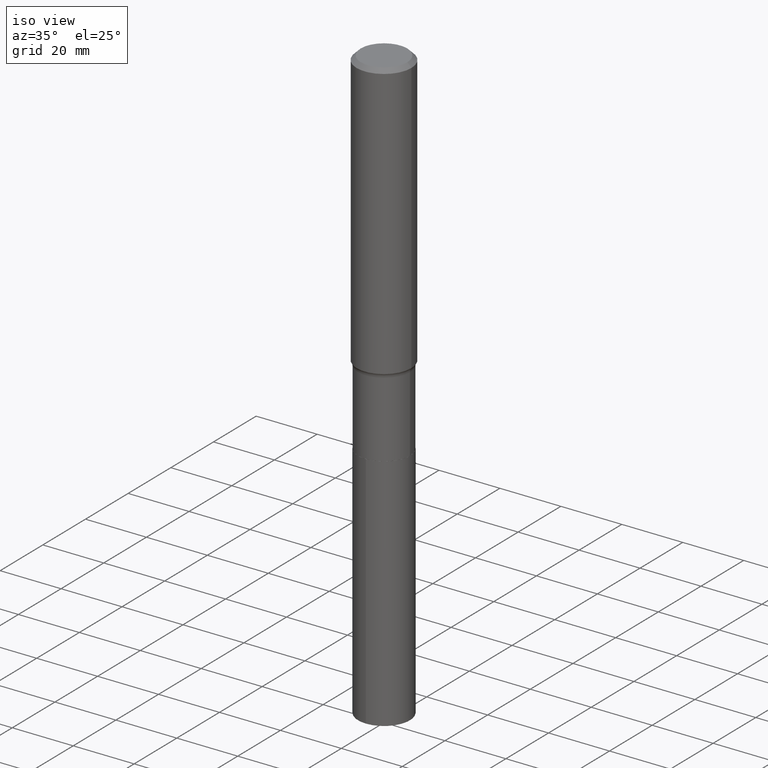
[diagram: clean part render]
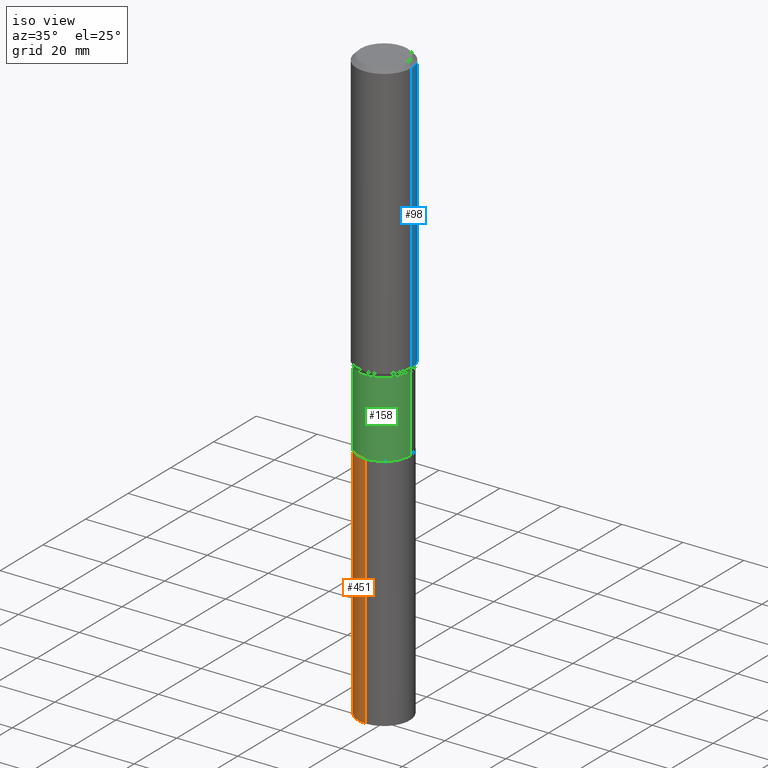
[diagram: same view with three faces highlighted in distinct colors, each labeled with its STEP entity id]
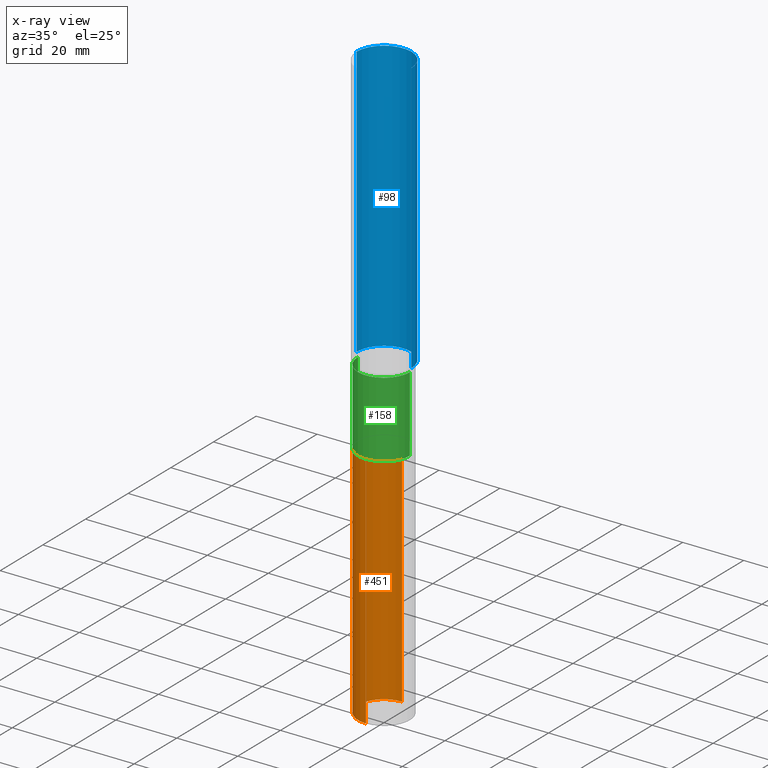
[diagram: x-ray of the same camera — body ghosted, the three highlighted faces saturated]
A machine part, iso view with three faces highlighted in distinct colors.
The next image is the same camera in x-ray (body ghosted, the three faces saturated) — at least one of them is partly hidden behind the body in this view.
Their STEP definitions:

[orange] entity #451 — the highlighted cylindrical surface (edge-blend (fillet) strip) has radius 8.5001 mm, axis along (-0, 0, 1).
#33 = VERTEX_POINT ( 'NONE', #99 ) ;
#34 = DIRECTION ( 'NONE',  ( -6.982962677686266711E-15, -1.000000000000000000, 3.265319580055895186E-15 ) ) ;
#68 = ORIENTED_EDGE ( 'NONE', *, *, #251, .T. ) ;
#69 = DIRECTION ( 'NONE',  ( -6.982962677686266711E-15, -1.000000000000000000, 3.265319580055895186E-15 ) ) ;
#83 = CARTESIAN_POINT ( 'NONE',  ( -2.336848460087597067E-15, -0.3346500000000160457, -4.587199999999998390 ) ) ;
#85 = CARTESIAN_POINT ( 'NONE',  ( 2.377831265221286917E-15, 0.3346499999999839603, -4.587200000000001054 ) ) ;
#99 = CARTESIAN_POINT ( 'NONE',  ( 2.377831265221324783E-15, 0.3346499999999731911, -7.677200000000001801 ) ) ;
#130 = DIRECTION ( 'NONE',  ( -2.445011850154846511E-29, 3.492135725886842915E-15, 1.000000000000000000 ) ) ;
#135 = VECTOR ( 'NONE', #407, 39.37007874015748143 ) ;
#139 = DIRECTION ( 'NONE',  ( -6.982962677686266711E-15, -1.000000000000000000, 3.265319580055895186E-15 ) ) ;
#169 = LINE ( 'NONE', #422, #189 ) ;
#189 = VECTOR ( 'NONE', #359, 39.37007874015748143 ) ;
#199 = CARTESIAN_POINT ( 'NONE',  ( 2.377831265221363042E-15, 0.3346499999999839603, -4.587200000000001054 ) ) ;
#203 = EDGE_CURVE ( 'NONE', #300, #252, #169, .T. ) ;
#222 = CARTESIAN_POINT ( 'NONE',  ( 1.121785450773245711E-28, -1.601612319754127659E-14, -4.587199999999999278 ) ) ;
#228 = EDGE_CURVE ( 'NONE', #280, #252, #458, .T. ) ;
#251 = EDGE_CURVE ( 'NONE', #33, #300, #340, .T. ) ;
#252 = VERTEX_POINT ( 'NONE', #83 ) ;
#256 = FACE_OUTER_BOUND ( 'NONE', #418, .T. ) ;
#267 = CARTESIAN_POINT ( 'NONE',  ( -2.336848460087521336E-15, -0.3346500000000268704, -7.677200000000000024 ) ) ;
#280 = VERTEX_POINT ( 'NONE', #199 ) ;
#295 = AXIS2_PLACEMENT_3D ( 'NONE', #452, #130, #69 ) ;
#300 = VERTEX_POINT ( 'NONE', #267 ) ;
#317 = CARTESIAN_POINT ( 'NONE',  ( 1.877294112471093456E-28, -2.680682259053162671E-14, -7.677200000000000912 ) ) ;
#333 = CYLINDRICAL_SURFACE ( 'NONE', #369, 0.3346500000000000030 ) ;
#340 = CIRCLE ( 'NONE', #345, 0.3346500000000000030 ) ;
#345 = AXIS2_PLACEMENT_3D ( 'NONE', #317, #454, #139 ) ;
#359 = DIRECTION ( 'NONE',  ( -2.445011850154846511E-29, 3.492135725886842915E-15, 1.000000000000000000 ) ) ;
#369 = AXIS2_PLACEMENT_3D ( 'NONE', #222, #404, #34 ) ;
#375 = LINE ( 'NONE', #85, #135 ) ;
#378 = ORIENTED_EDGE ( 'NONE', *, *, #388, .F. ) ;
#388 = EDGE_CURVE ( 'NONE', #33, #280, #375, .T. ) ;
#404 = DIRECTION ( 'NONE',  ( -2.445011850154846511E-29, 3.492135725886842915E-15, 1.000000000000000000 ) ) ;
#407 = DIRECTION ( 'NONE',  ( -2.445011850154846511E-29, 3.492135725886842915E-15, 1.000000000000000000 ) ) ;
#418 = EDGE_LOOP ( 'NONE', ( #378, #68, #433, #438 ) ) ;
#422 = CARTESIAN_POINT ( 'NONE',  ( -2.336848460087597067E-15, -0.3346500000000160457, -4.587199999999998390 ) ) ;
#433 = ORIENTED_EDGE ( 'NONE', *, *, #203, .T. ) ;
#438 = ORIENTED_EDGE ( 'NONE', *, *, #228, .F. ) ;
#451 = ADVANCED_FACE ( 'NONE', ( #256 ), #333, .T. ) ;
#452 = CARTESIAN_POINT ( 'NONE',  ( 1.121785450773245711E-28, -1.601612319754127659E-14, -4.587199999999999278 ) ) ;
#454 = DIRECTION ( 'NONE',  ( -2.445011850154846511E-29, 3.492135725886842915E-15, 1.000000000000000000 ) ) ;
#458 = CIRCLE ( 'NONE', #295, 0.3346500000000000030 ) ;

[blue] entity #98 — the highlighted cylindrical surface (edge-blend (fillet) strip) has radius 9.0005 mm, axis along (-0, 0, 1).
#18 = AXIS2_PLACEMENT_3D ( 'NONE', #225, #124, #113 ) ;
#19 = CARTESIAN_POINT ( 'NONE',  ( -0.3543500000000006644, -9.905675328687322554E-15, -3.558227098234926000 ) ) ;
#24 = DIRECTION ( 'NONE',  ( 1.000000000000000000, -6.982962677686267499E-15, 0.000000000000000000 ) ) ;
#42 = ORIENTED_EDGE ( 'NONE', *, *, #221, .T. ) ;
#58 = CARTESIAN_POINT ( 'NONE',  ( 0.3543500000000002759, -2.474412824838130666E-15, 1.727873240503291150E-29 ) ) ;
#63 = CARTESIAN_POINT ( 'NONE',  ( -0.3543500000000002759, 2.517808184165916969E-15, -1.743024649231827187E-29 ) ) ;
#67 = EDGE_CURVE ( 'NONE', #334, #188, #315, .T. ) ;
#89 = AXIS2_PLACEMENT_3D ( 'NONE', #321, #461, #24 ) ;
#98 = ADVANCED_FACE ( 'NONE', ( #137 ), #202, .T. ) ;
#107 = VERTEX_POINT ( 'NONE', #19 ) ;
#111 = CARTESIAN_POINT ( 'NONE',  ( -0.3543499999999999983, -3.786724053192132939E-15, -0.05315250000000037306 ) ) ;
#113 = DIRECTION ( 'NONE',  ( 1.000000000000000000, -6.982962677686266711E-15, 0.000000000000000000 ) ) ;
#124 = DIRECTION ( 'NONE',  ( -2.445468806185136597E-29, 3.491481338843145583E-15, 1.000000000000000000 ) ) ;
#128 = VERTEX_POINT ( 'NONE', #111 ) ;
#137 = FACE_OUTER_BOUND ( 'NONE', #414, .T. ) ;
#166 = VECTOR ( 'NONE', #174, 39.37007874015748143 ) ;
#174 = DIRECTION ( 'NONE',  ( -2.445468806185136877E-29, 3.491481338843145188E-15, 1.000000000000000000 ) ) ;
#178 = DIRECTION ( 'NONE',  ( 1.000000000000000000, -6.982962677686266711E-15, 4.876176775795935793E-29 ) ) ;
#188 = VERTEX_POINT ( 'NONE', #246 ) ;
#202 = CYLINDRICAL_SURFACE ( 'NONE', #409, 0.3543500000000002759 ) ;
#213 = CARTESIAN_POINT ( 'NONE',  ( 0.3543500000000006644, -1.489789633769137492E-14, -3.558227098234926000 ) ) ;
#221 = EDGE_CURVE ( 'NONE', #107, #128, #391, .T. ) ;
#225 = CARTESIAN_POINT ( 'NONE',  ( 1.299827807207564022E-30, -1.855809618628616242E-16, -0.05315250000000037306 ) ) ;
#245 = CARTESIAN_POINT ( 'NONE',  ( 0.000000000000000000, 0.000000000000000000, 0.000000000000000000 ) ) ;
#246 = CARTESIAN_POINT ( 'NONE',  ( 0.3543499999999999983, -2.659993786700990170E-15, -0.05315250000000037306 ) ) ;
#248 = DIRECTION ( 'NONE',  ( -2.445468806185136877E-29, 3.491481338843145188E-15, 1.000000000000000000 ) ) ;
#277 = ORIENTED_EDGE ( 'NONE', *, *, #379, .F. ) ;
#309 = CIRCLE ( 'NONE', #18, 0.3543499999999999983 ) ;
#315 = LINE ( 'NONE', #58, #435 ) ;
#321 = CARTESIAN_POINT ( 'NONE',  ( 8.701533374056167494E-29, -1.242348351285324031E-14, -3.558227098234926000 ) ) ;
#325 = EDGE_CURVE ( 'NONE', #334, #107, #448, .T. ) ;
#334 = VERTEX_POINT ( 'NONE', #213 ) ;
#361 = DIRECTION ( 'NONE',  ( -2.445468806185136597E-29, 3.491481338843145583E-15, 1.000000000000000000 ) ) ;
#379 = EDGE_CURVE ( 'NONE', #188, #128, #309, .T. ) ;
#391 = LINE ( 'NONE', #63, #166 ) ;
#409 = AXIS2_PLACEMENT_3D ( 'NONE', #245, #361, #178 ) ;
#414 = EDGE_LOOP ( 'NONE', ( #440, #42, #277, #468 ) ) ;
#435 = VECTOR ( 'NONE', #248, 39.37007874015748143 ) ;
#440 = ORIENTED_EDGE ( 'NONE', *, *, #325, .T. ) ;
#448 = CIRCLE ( 'NONE', #89, 0.3543500000000004979 ) ;
#461 = DIRECTION ( 'NONE',  ( -2.445468806185136597E-29, 3.491481338843145583E-15, 1.000000000000000000 ) ) ;
#468 = ORIENTED_EDGE ( 'NONE', *, *, #67, .F. ) ;

[green] entity #158 — the highlighted cylindrical surface (edge-blend (fillet) strip) has radius 8.5001 mm, axis along (-0, 0, 1).
#5 = AXIS2_PLACEMENT_3D ( 'NONE', #101, #180, #238 ) ;
#7 = ORIENTED_EDGE ( 'NONE', *, *, #82, .F. ) ;
#10 = CIRCLE ( 'NONE', #195, 0.3346500000000000585 ) ;
#29 = FACE_OUTER_BOUND ( 'NONE', #117, .T. ) ;
#32 = VECTOR ( 'NONE', #322, 39.37007874015748143 ) ;
#35 = VERTEX_POINT ( 'NONE', #303 ) ;
#64 = EDGE_CURVE ( 'NONE', #412, #112, #354, .T. ) ;
#78 = CARTESIAN_POINT ( 'NONE',  ( 0.3346500000000000585, -1.835122591695956180E-14, -4.586699999999999555 ) ) ;
#82 = EDGE_CURVE ( 'NONE', #297, #35, #181, .T. ) ;
#101 = CARTESIAN_POINT ( 'NONE',  ( 0.000000000000000000, 0.000000000000000000, 0.000000000000000000 ) ) ;
#112 = VERTEX_POINT ( 'NONE', #397 ) ;
#114 = ORIENTED_EDGE ( 'NONE', *, *, #307, .F. ) ;
#116 = VECTOR ( 'NONE', #172, 39.37007874015748143 ) ;
#117 = EDGE_LOOP ( 'NONE', ( #7, #367, #362, #114 ) ) ;
#158 = ADVANCED_FACE ( 'NONE', ( #29 ), #183, .T. ) ;
#172 = DIRECTION ( 'NONE',  ( -2.445468806185136877E-29, 3.491481338843145188E-15, 1.000000000000000000 ) ) ;
#180 = DIRECTION ( 'NONE',  ( -2.445468806185136597E-29, 3.491481338843145583E-15, 1.000000000000000000 ) ) ;
#181 = LINE ( 'NONE', #209, #32 ) ;
#183 = CYLINDRICAL_SURFACE ( 'NONE', #5, 0.3346500000000000030 ) ;
#186 = DIRECTION ( 'NONE',  ( 1.000000000000000000, -6.982962677686260400E-15, 0.000000000000000000 ) ) ;
#195 = AXIS2_PLACEMENT_3D ( 'NONE', #373, #294, #186 ) ;
#209 = CARTESIAN_POINT ( 'NONE',  ( -0.3346500000000000030, 2.377831265221175293E-15, -1.646121627953804231E-29 ) ) ;
#233 = CARTESIAN_POINT ( 'NONE',  ( -0.3346500000000000585, -1.193287787236216859E-14, -4.586699999999999555 ) ) ;
#238 = DIRECTION ( 'NONE',  ( 1.000000000000000000, -6.982962677686266711E-15, 4.876176775795935232E-29 ) ) ;
#286 = DIRECTION ( 'NONE',  ( -2.445468806185136597E-29, 3.491481338843145583E-15, 1.000000000000000000 ) ) ;
#294 = DIRECTION ( 'NONE',  ( -2.445468806185136597E-29, 3.491481338843145583E-15, 1.000000000000000000 ) ) ;
#297 = VERTEX_POINT ( 'NONE', #233 ) ;
#303 = CARTESIAN_POINT ( 'NONE',  ( -0.3346499999999999475, -1.193287787236216859E-14, -3.610800000000000232 ) ) ;
#307 = EDGE_CURVE ( 'NONE', #35, #112, #363, .T. ) ;
#314 = DIRECTION ( 'NONE',  ( 1.000000000000000000, -6.982962677686262766E-15, 0.000000000000000000 ) ) ;
#322 = DIRECTION ( 'NONE',  ( -2.445468806185136877E-29, 3.491481338843145188E-15, 1.000000000000000000 ) ) ;
#347 = CARTESIAN_POINT ( 'NONE',  ( 8.830098765373292000E-29, -1.260704081829483189E-14, -3.610800000000000232 ) ) ;
#354 = LINE ( 'NONE', #390, #116 ) ;
#362 = ORIENTED_EDGE ( 'NONE', *, *, #64, .T. ) ;
#363 = CIRCLE ( 'NONE', #410, 0.3346499999999999475 ) ;
#367 = ORIENTED_EDGE ( 'NONE', *, *, #430, .T. ) ;
#373 = CARTESIAN_POINT ( 'NONE',  ( 1.121663177332936431E-28, -1.601437745687185429E-14, -4.586699999999999555 ) ) ;
#390 = CARTESIAN_POINT ( 'NONE',  ( 0.3346500000000000030, -2.336848460087709085E-15, 1.631812558020109799E-29 ) ) ;
#397 = CARTESIAN_POINT ( 'NONE',  ( 0.3346499999999999475, -1.494388927838253940E-14, -3.610800000000000232 ) ) ;
#410 = AXIS2_PLACEMENT_3D ( 'NONE', #347, #286, #314 ) ;
#412 = VERTEX_POINT ( 'NONE', #78 ) ;
#430 = EDGE_CURVE ( 'NONE', #297, #412, #10, .T. ) ;